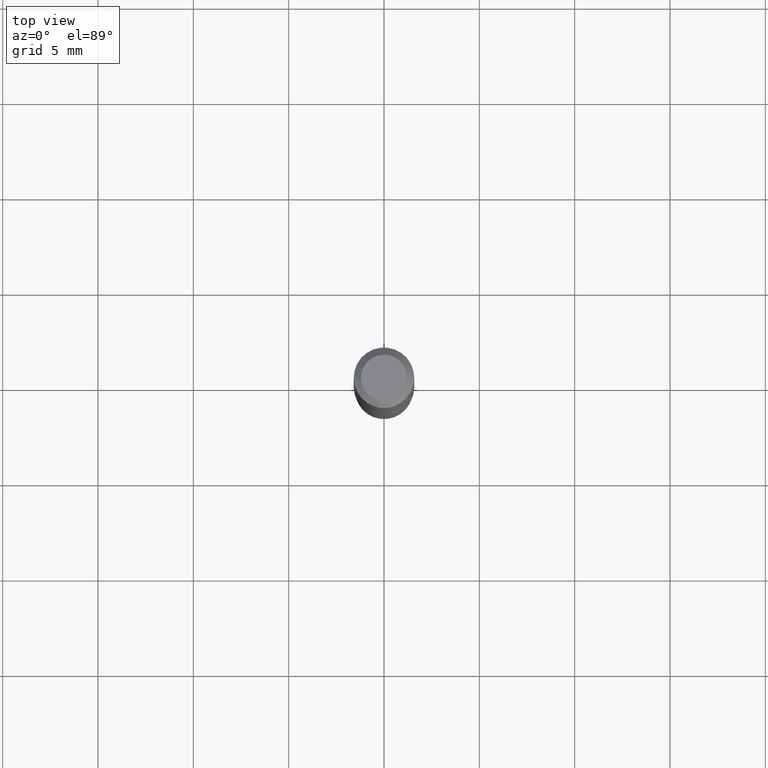
[diagram: clean part render]
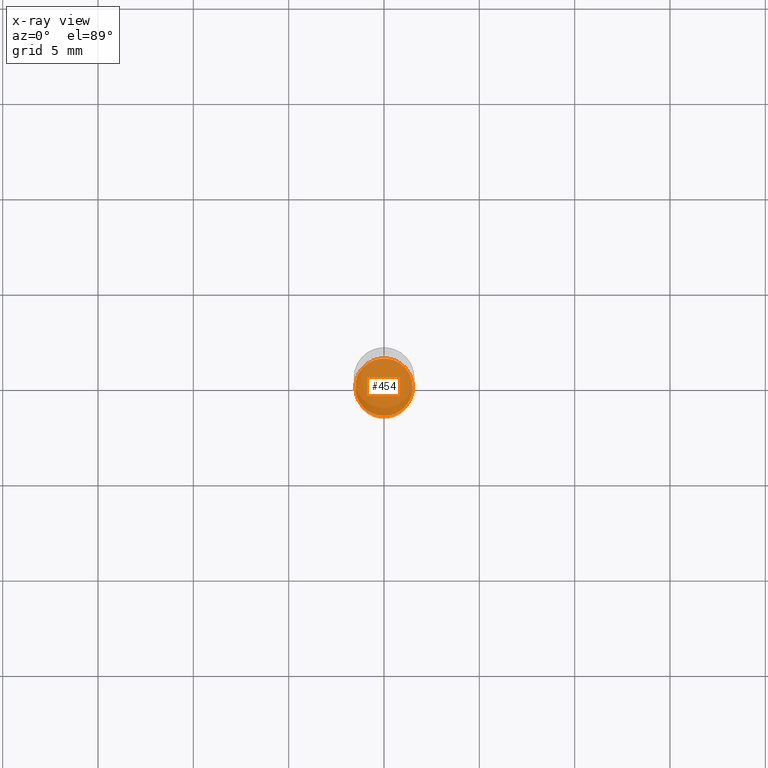
[diagram: x-ray — body ghosted, one internal face saturated and labeled with its STEP entity id]
A machine part, top view, then the same camera in x-ray: the body is ghosted and one INTERNAL B-rep face — a face not visible from any outside direction — is saturated and labeled: STEP entity #454.
In plain terms, the highlighted planar face has unit normal (-0, 0, 1).
Its self-contained STEP definition (entity closure, byte-faithful):
#1 = DIRECTION ( 'NONE',  ( -2.445468806185136597E-29, 3.491481338843145583E-15, 1.000000000000000000 ) ) ;
#9 = ORIENTED_EDGE ( 'NONE', *, *, #221, .F. ) ;
#31 = CARTESIAN_POINT ( 'NONE',  ( 2.787834439051055989E-29, -3.980288726281186698E-15, -1.140000000000000124 ) ) ;
#42 = CIRCLE ( 'NONE', #284, 0.05950000000000005979 ) ;
#121 = CARTESIAN_POINT ( 'NONE',  ( 0.05950000000000005979, -4.395775005603519536E-15, -1.140000000000000124 ) ) ;
#129 = EDGE_CURVE ( 'NONE', #343, #342, #42, .T. ) ;
#133 = ORIENTED_EDGE ( 'NONE', *, *, #129, .F. ) ;
#154 = DIRECTION ( 'NONE',  ( 1.000000000000000000, -6.982962677686269077E-15, 0.000000000000000000 ) ) ;
#155 = PLANE ( 'NONE',  #251 ) ;
#161 = DIRECTION ( 'NONE',  ( 1.000000000000000000, -6.982962677686269077E-15, 0.000000000000000000 ) ) ;
#165 = AXIS2_PLACEMENT_3D ( 'NONE', #31, #1, #161 ) ;
#221 = EDGE_CURVE ( 'NONE', #342, #343, #406, .T. ) ;
#251 = AXIS2_PLACEMENT_3D ( 'NONE', #422, #319, #425 ) ;
#268 = FACE_OUTER_BOUND ( 'NONE', #416, .T. ) ;
#284 = AXIS2_PLACEMENT_3D ( 'NONE', #400, #439, #154 ) ;
#319 = DIRECTION ( 'NONE',  ( -2.438088387897960049E-29, 3.491481338843145188E-15, 1.000000000000000000 ) ) ;
#342 = VERTEX_POINT ( 'NONE', #121 ) ;
#343 = VERTEX_POINT ( 'NONE', #443 ) ;
#400 = CARTESIAN_POINT ( 'NONE',  ( 2.787834439051055989E-29, -3.980288726281186698E-15, -1.140000000000000124 ) ) ;
#406 = CIRCLE ( 'NONE', #165, 0.05950000000000005979 ) ;
#416 = EDGE_LOOP ( 'NONE', ( #9, #133 ) ) ;
#422 = CARTESIAN_POINT ( 'NONE',  ( 2.787834439051055989E-29, -3.980288726281186698E-15, -1.140000000000000124 ) ) ;
#425 = DIRECTION ( 'NONE',  ( 1.000000000000000000, -6.982962677686265922E-15, 4.876176775795935793E-29 ) ) ;
#439 = DIRECTION ( 'NONE',  ( -2.445468806185136597E-29, 3.491481338843145583E-15, 1.000000000000000000 ) ) ;
#443 = CARTESIAN_POINT ( 'NONE',  ( -0.05950000000000005979, -3.554866571329815905E-15, -1.140000000000000124 ) ) ;
#454 = ADVANCED_FACE ( 'NONE', ( #268 ), #155, .F. ) ;